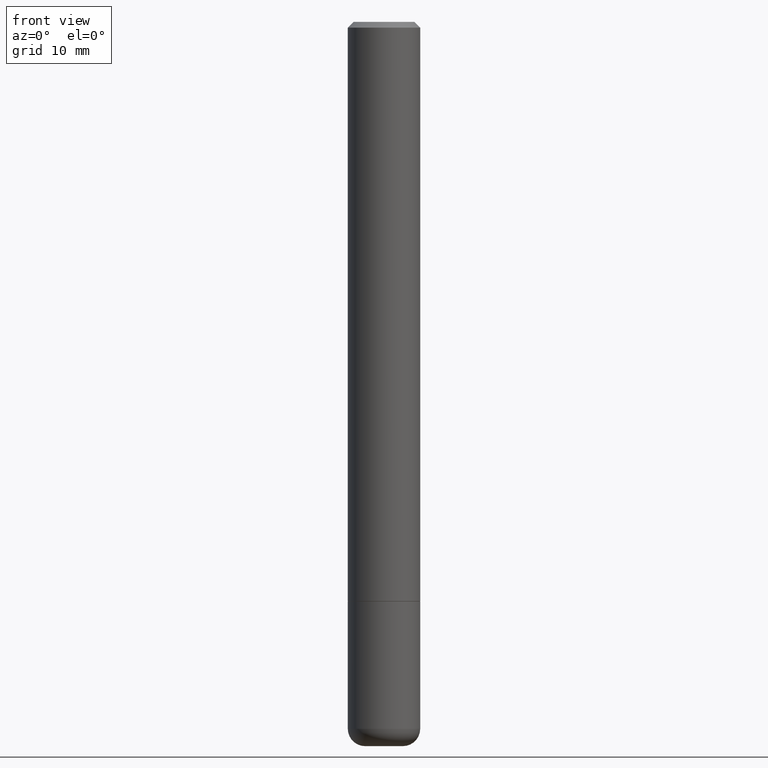
[diagram: clean part render]
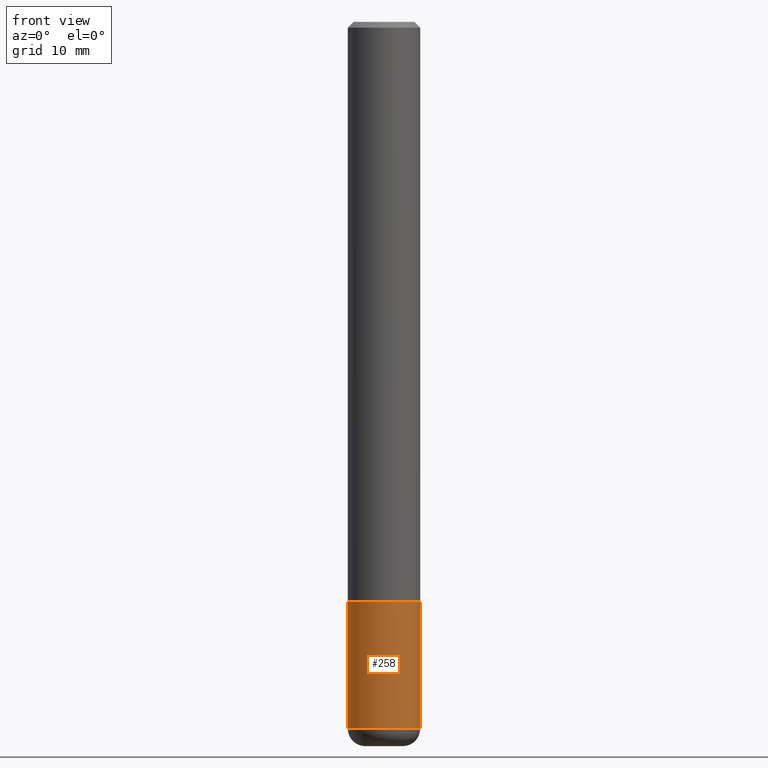
[diagram: same view with one face highlighted and labeled with its STEP entity id]
A machine part, front view. The second image highlights one B-rep face of the part: STEP entity #258.
In plain terms, the highlighted cylindrical surface (edge-blend (fillet) strip) has radius 3.175 mm, axis along (-0, 0, 1).
Its self-contained STEP definition (entity closure, byte-faithful):
#6 = CIRCLE ( 'NONE', #18, 0.1250000000000000000 ) ;
#11 = EDGE_LOOP ( 'NONE', ( #265, #183, #210, #335 ) ) ;
#18 = AXIS2_PLACEMENT_3D ( 'NONE', #123, #314, #105 ) ;
#23 = EDGE_CURVE ( 'NONE', #399, #104, #310, .T. ) ;
#31 = CARTESIAN_POINT ( 'NONE',  ( -0.1250000000000000000, -6.862910152531658269E-15, -2.000000000000000000 ) ) ;
#57 = CYLINDRICAL_SURFACE ( 'NONE', #296, 0.1250000000000000000 ) ;
#88 = DIRECTION ( 'NONE',  ( 1.000000000000000000, -6.982962677686266711E-15, 4.876176775795935793E-29 ) ) ;
#104 = VERTEX_POINT ( 'NONE', #164 ) ;
#105 = DIRECTION ( 'NONE',  ( 1.000000000000000000, -6.982962677686270655E-15, 0.000000000000000000 ) ) ;
#118 = VECTOR ( 'NONE', #250, 39.37007874015748143 ) ;
#123 = CARTESIAN_POINT ( 'NONE',  ( 4.890937612370273194E-29, -6.982962677686291165E-15, -2.000000000000000000 ) ) ;
#149 = CARTESIAN_POINT ( 'NONE',  ( 0.000000000000000000, 0.000000000000000000, 0.000000000000000000 ) ) ;
#164 = CARTESIAN_POINT ( 'NONE',  ( 0.1250000000000001110, -9.392084801488058387E-15, -2.440000000000000391 ) ) ;
#172 = CARTESIAN_POINT ( 'NONE',  ( -0.1250000000000001110, -7.631036047077149816E-15, -2.440000000000000391 ) ) ;
#179 = DIRECTION ( 'NONE',  ( 1.000000000000000000, -6.982962677686262766E-15, 0.000000000000000000 ) ) ;
#183 = ORIENTED_EDGE ( 'NONE', *, *, #23, .T. ) ;
#189 = EDGE_CURVE ( 'NONE', #104, #294, #248, .T. ) ;
#196 = CARTESIAN_POINT ( 'NONE',  ( -0.1250000000000000000, 8.881784197001252323E-16, -6.148668862818632227E-30 ) ) ;
#204 = VERTEX_POINT ( 'NONE', #31 ) ;
#210 = ORIENTED_EDGE ( 'NONE', *, *, #189, .T. ) ;
#211 = CARTESIAN_POINT ( 'NONE',  ( 5.966943887091733341E-29, -8.519214466777275048E-15, -2.440000000000000391 ) ) ;
#224 = DIRECTION ( 'NONE',  ( -2.445468806185136877E-29, 3.491481338843145188E-15, 1.000000000000000000 ) ) ;
#248 = LINE ( 'NONE', #376, #118 ) ;
#250 = DIRECTION ( 'NONE',  ( -2.445468806185136877E-29, 3.491481338843145188E-15, 1.000000000000000000 ) ) ;
#258 = ADVANCED_FACE ( 'NONE', ( #298 ), #57, .T. ) ;
#265 = ORIENTED_EDGE ( 'NONE', *, *, #325, .F. ) ;
#268 = EDGE_CURVE ( 'NONE', #204, #294, #6, .T. ) ;
#294 = VERTEX_POINT ( 'NONE', #389 ) ;
#296 = AXIS2_PLACEMENT_3D ( 'NONE', #149, #417, #88 ) ;
#298 = FACE_OUTER_BOUND ( 'NONE', #11, .T. ) ;
#310 = CIRCLE ( 'NONE', #414, 0.1250000000000000000 ) ;
#314 = DIRECTION ( 'NONE',  ( -2.445468806185136597E-29, 3.491481338843145583E-15, 1.000000000000000000 ) ) ;
#325 = EDGE_CURVE ( 'NONE', #399, #204, #358, .T. ) ;
#335 = ORIENTED_EDGE ( 'NONE', *, *, #268, .F. ) ;
#340 = DIRECTION ( 'NONE',  ( -2.445468806185136597E-29, 3.491481338843145583E-15, 1.000000000000000000 ) ) ;
#358 = LINE ( 'NONE', #196, #383 ) ;
#376 = CARTESIAN_POINT ( 'NONE',  ( 0.1250000000000000000, -8.728703347107833388E-16, 6.095220969744919741E-30 ) ) ;
#383 = VECTOR ( 'NONE', #224, 39.37007874015748143 ) ;
#389 = CARTESIAN_POINT ( 'NONE',  ( 0.1250000000000000000, -7.855833012397075293E-15, -2.000000000000000000 ) ) ;
#399 = VERTEX_POINT ( 'NONE', #172 ) ;
#414 = AXIS2_PLACEMENT_3D ( 'NONE', #211, #340, #179 ) ;
#417 = DIRECTION ( 'NONE',  ( -2.445468806185136597E-29, 3.491481338843145583E-15, 1.000000000000000000 ) ) ;